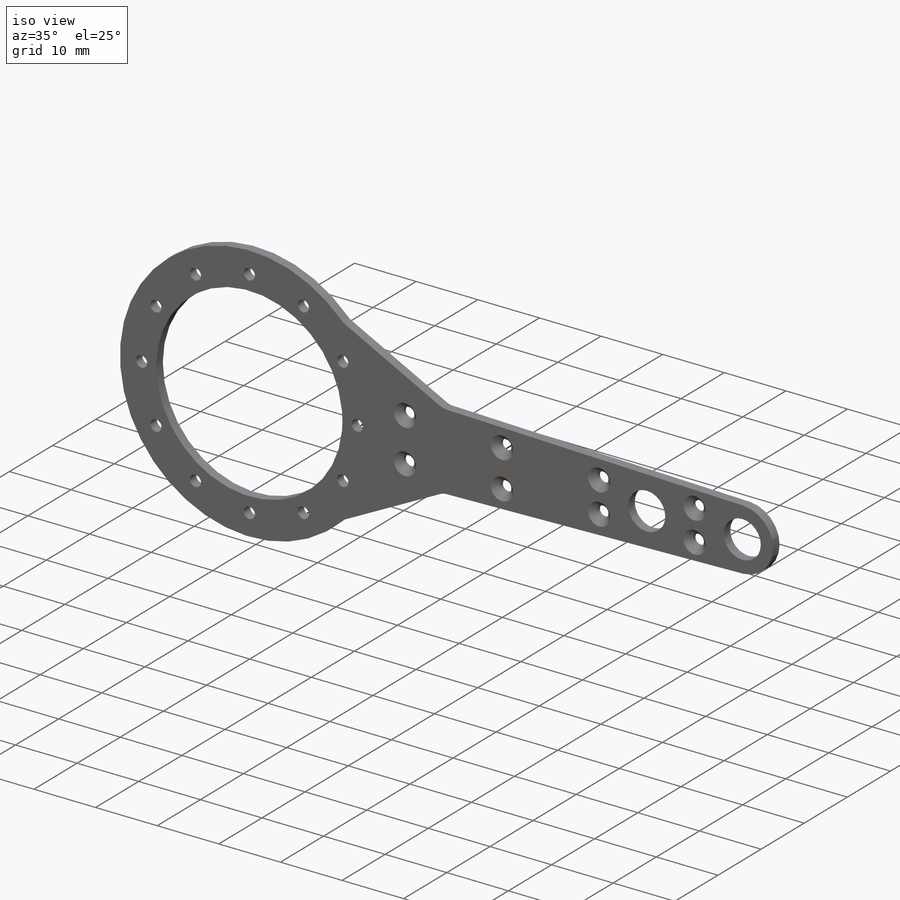
[diagram: iso view]
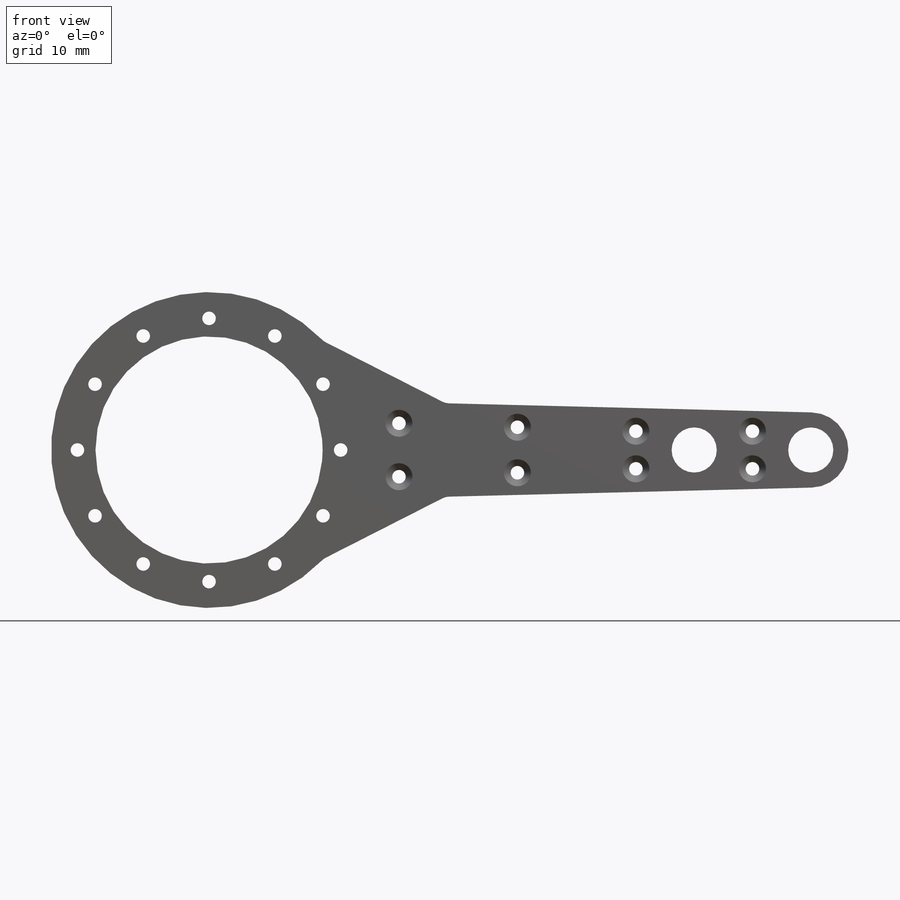
[diagram: front view]
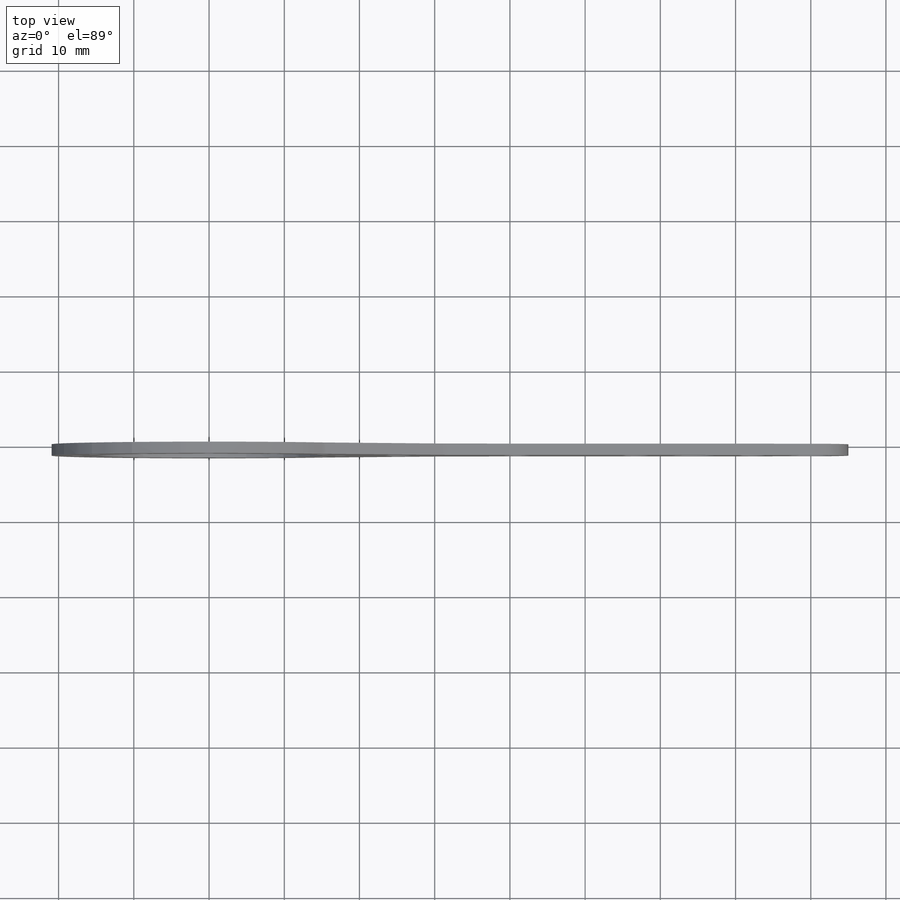
[diagram: top view]
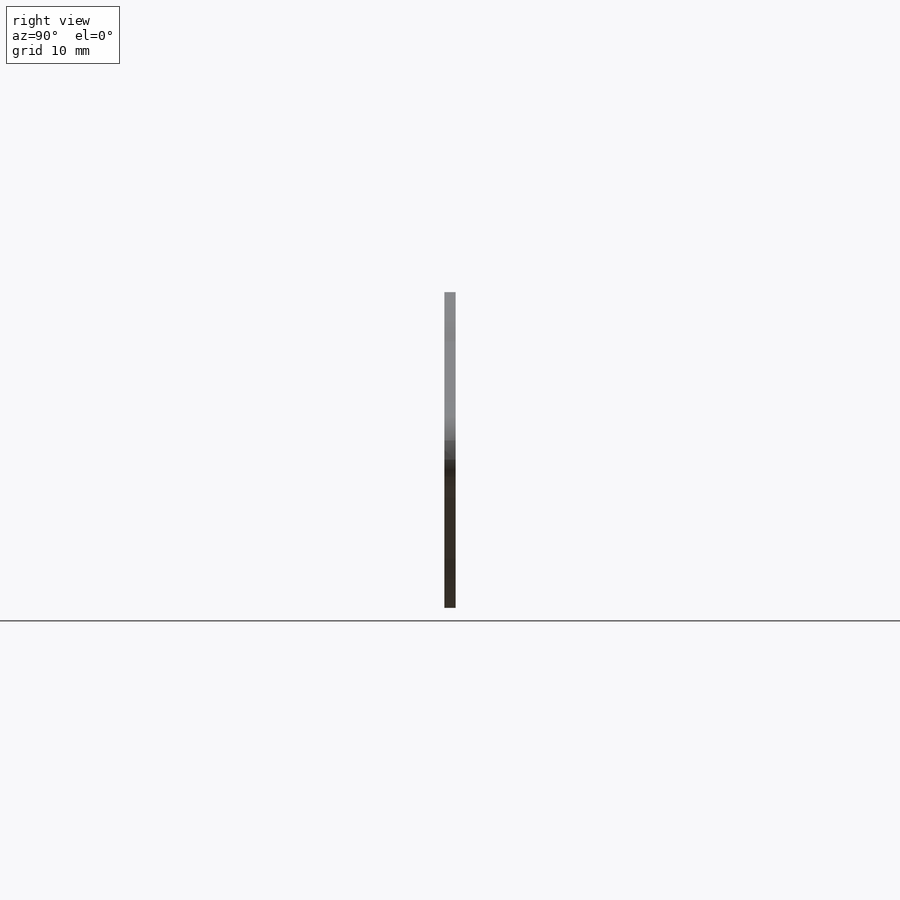
[diagram: right view]
SOLIDWORKS PART (.sldprt)
format: sldprt  version: not decoded by parser v0  size: 463,872 bytes
history: native  units: mm
features: sketch x10, chamfer x4, hole x3, cut_extrude x2, material x1, extrude x1, pattern_circular x1, fillet x1 (+12 scaffold rows collapsed)
feature tree (35):
  scaffold x12  (default folders/planes/origin — collapsed)
  material  "Hexcel AS4C (3000 Filaments)"
  sketch  "Sketch1"  dims[c1.D1=39.0mm c1.D4=6.0mm c1.D3=28.0mm c1.D5=6.0mm c1.D7=5.0mm c1.D8=35.0mm c2.D1=33.0mm c2.D3=33.0mm c3.D1=30.2mm c3.D3=21.0mm c3.D2=15.5mm c4.D3=55.0mm c4.D5=3.0mm c4.D6=13.0mm c5.D5=80.0mm c5.D1=3.0mm c5.D3=3.0mm]
  extrude  "Boss-Extrude1"  Depth=1.5mm
  hole  "Dégagement M1.62"  Diameter=1.8mm Depth=11.5mm
  sketch  "Sketch5"  dims[D1=35.0mm]
  sketch  "Sketch4"  dims[hole-wizard template sketch: 47 standard entries collapsed; hole parameters kept: c15.Hole Depth=11.5mm c15.D3=~14.816244mm c15.Drill Angle=180.0deg]
  pattern_circular  "CirPattern1"  Count=12 Angle=360deg
  hole  "M2 Clearance Hole2"  Diameter=2.4mm Depth=11.5mm
  sketch  "Sketch7"  dims[c1.D1=45.0mm c1.D2=5.0mm c1.D3=5.0mm c2.D1=7.75mm]
  sketch  "Sketch6"  dims[hole-wizard template sketch: 50 standard entries collapsed; hole parameters above]
  chamfer  "Chamfer2"  Distance=7mm Angle=45deg
  fillet  "Fillet4"  Radius=2mm
  sketch  "Sketch8"  dims[c1.D4=2.0mm c1.D1=20.0mm c1.D2=28.0mm c1.D3=5.0mm c2.D2=53.0mm]
  hole  "Dégagement M1.61"  Diameter=1.8mm Depth=11.5mm
  sketch  "Sketch11"  dims[c1.D4=6.0mm c1.D6=6.0mm c1.D1=7.75mm c1.D2=~8.143249mm c2.D1=15.5mm c2.D2=7.75mm c2.D3=2.5mm c2.D4=2.5mm c2.D5=2.5mm c2.D6=2.5mm c2.D7=7.75mm c2.D8=7.75mm]
  sketch  "Sketch10"  dims[hole-wizard template sketch: 46 standard entries collapsed; hole parameters kept: c15.Diamètre du perçage=1.8mm c15.Profondeur du perçage=11.5mm c15.D3=~14.816244mm c15.Angle de pointe=180.0deg]
  chamfer  "Chamfer3"  Distance=0.9mm Angle=45deg
  sketch  "Esquisse1"  dims[c1.D1=43.0mm c1.D2=~52.839579mm c1.D5=1.8mm c1.D6=1.8mm c2.D2=4.0mm c2.D3=25.5mm c3.D3=8.0deg c3.D4=25.5mm c4.D4=8.0deg]
  cut_extrude  "Enlèv. mat.-Extru.1"  Depth=10mm
  chamfer  "Chanfrein1"  Distance=0.9mm Angle=45deg
  sketch  "Esquisse2"  dims[D1=1.8mm D2=1.8mm]
  cut_extrude  "Enlèv. mat.-Extru.2"  Depth=10mm
  chamfer  "Chanfrein2"  Distance=0.9mm Angle=45deg
decode coverage: 22 of 22 modeling features carry decoded parameters
note: ~ marks probable driven/reference dimensions
note: suppression state not decoded; provenance and decode notes live in map.json
